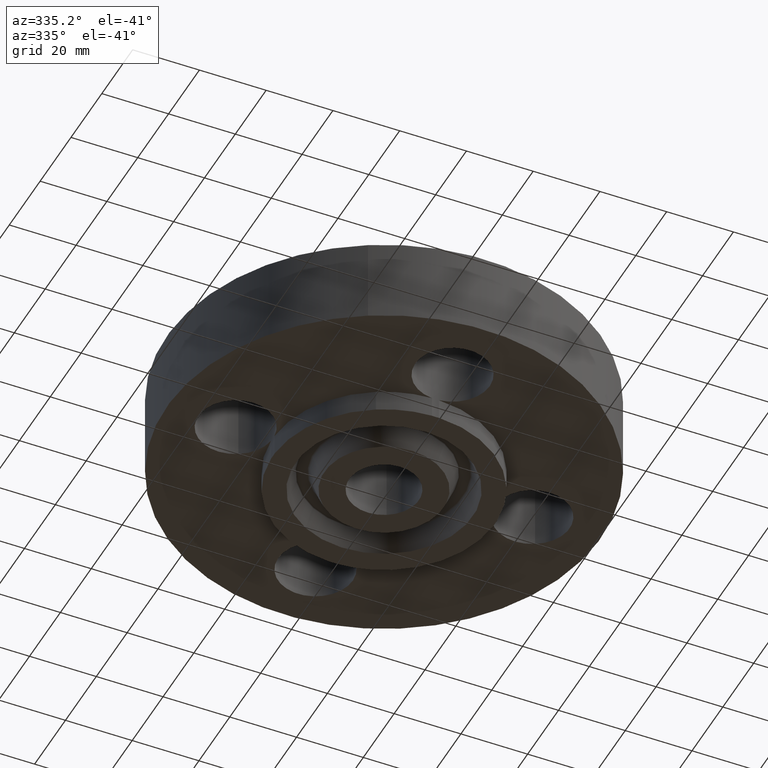
[diagram: clean part render]
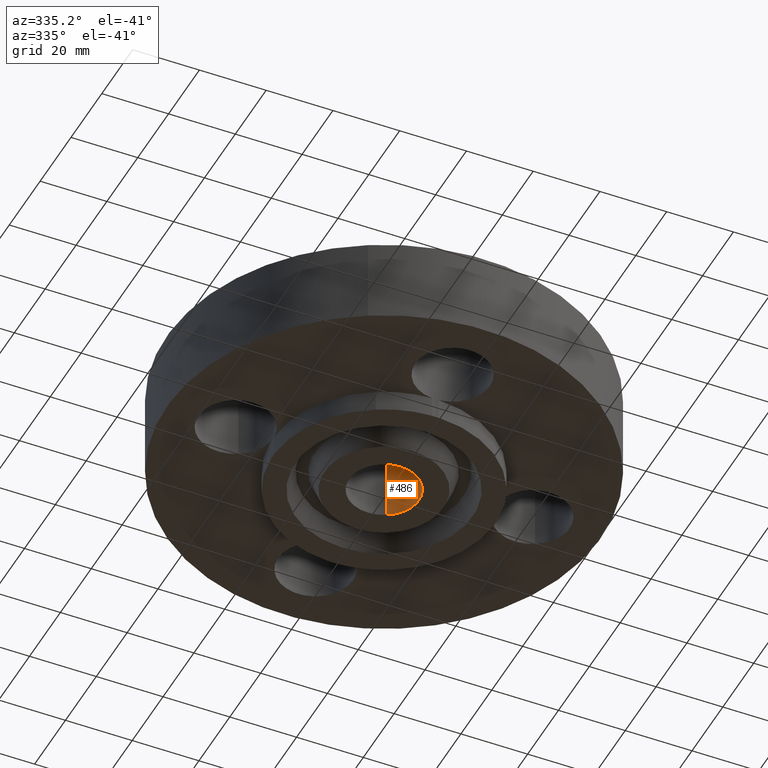
[diagram: same view with one face highlighted and labeled with its STEP entity id]
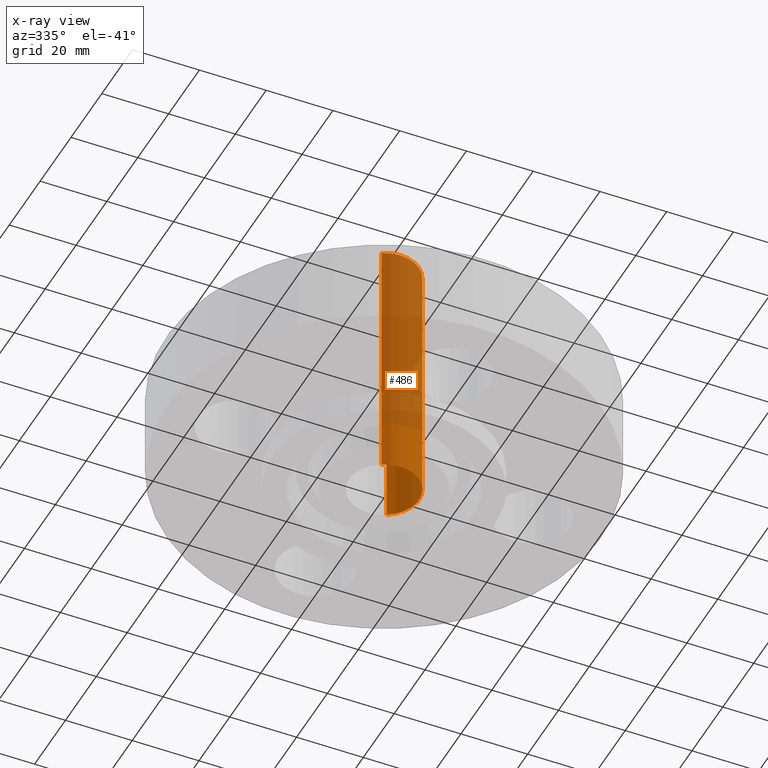
[diagram: x-ray of the same camera — body ghosted, the highlighted face saturated]
A machine part, auxiliary view. The second image highlights one B-rep face of the part: STEP entity #486.
The next image is the same camera in x-ray: the body ghosted, the highlighted face saturated — about 69% of this face is hidden behind the body in this view.
In plain terms, the highlighted cylindrical surface (partial cylindrical patch) has radius 10.4648 mm, axis along (0, 0, -1).
Its self-contained STEP definition (entity closure, byte-faithful):
#428=AXIS2_PLACEMENT_3D('Circle Axis2P3D',#426,#427,$) ;
#447=AXIS2_PLACEMENT_3D('Cylinder Axis2P3D',#444,#445,#446) ;
#477=AXIS2_PLACEMENT_3D('Circle Axis2P3D',#475,#476,$) ;
#421=CARTESIAN_POINT('Vertex',(-0.197523321906,-0.3615640155,2.75000000001)) ;
#423=CARTESIAN_POINT('Vertex',(0.197523321906,0.3615640155,2.75000000001)) ;
#426=CARTESIAN_POINT('Axis2P3D Location',(0.,0.,2.75000000001)) ;
#444=CARTESIAN_POINT('Axis2P3D Location',(0.,0.,1.25000000001)) ;
#449=CARTESIAN_POINT('Line Origine',(-0.197523321906,-0.3615640155,1.25)) ;
#453=CARTESIAN_POINT('Vertex',(-0.197523321906,-0.3615640155,-0.250000000001)) ;
#460=CARTESIAN_POINT('Vertex',(0.197523321906,0.3615640155,-0.250000000001)) ;
#463=CARTESIAN_POINT('Line Origine',(0.197523321906,0.3615640155,1.25)) ;
#475=CARTESIAN_POINT('Axis2P3D Location',(0.,0.,-0.250000000001)) ;
#427=DIRECTION('Axis2P3D Direction',(0.,0.,-0.0393700787402)) ;
#445=DIRECTION('Axis2P3D Direction',(0.,0.,-0.0393700787402)) ;
#446=DIRECTION('Axis2P3D XDirection',(0.0188750212049,0.0345504945626,0.)) ;
#450=DIRECTION('Vector Direction',(0.,0.,-0.0393700787402)) ;
#464=DIRECTION('Vector Direction',(0.,0.,-0.0393700787402)) ;
#476=DIRECTION('Axis2P3D Direction',(0.,0.,-0.0393700787402)) ;
#451=VECTOR('Line Direction',#450,0.0393700787402) ;
#465=VECTOR('Line Direction',#464,0.0393700787402) ;
#481=ORIENTED_EDGE('',*,*,#430,.F.) ;
#482=ORIENTED_EDGE('',*,*,#467,.T.) ;
#483=ORIENTED_EDGE('',*,*,#479,.T.) ;
#484=ORIENTED_EDGE('',*,*,#455,.F.) ;
#486=ADVANCED_FACE('PartBody',(#485),#448,.F.) ;
#429=CIRCLE('generated circle',#428,0.412000000002) ;
#478=CIRCLE('generated circle',#477,0.412000000002) ;
#448=CYLINDRICAL_SURFACE('generated cylinder',#447,0.412000000002) ;
#430=EDGE_CURVE('',#424,#422,#429,.T.) ;
#455=EDGE_CURVE('',#422,#454,#452,.T.) ;
#467=EDGE_CURVE('',#424,#461,#466,.T.) ;
#479=EDGE_CURVE('',#461,#454,#478,.T.) ;
#480=EDGE_LOOP('',(#481,#482,#483,#484)) ;
#485=FACE_OUTER_BOUND('',#480,.T.) ;
#452=LINE('Line',#449,#451) ;
#466=LINE('Line',#463,#465) ;
#422=VERTEX_POINT('',#421) ;
#424=VERTEX_POINT('',#423) ;
#454=VERTEX_POINT('',#453) ;
#461=VERTEX_POINT('',#460) ;